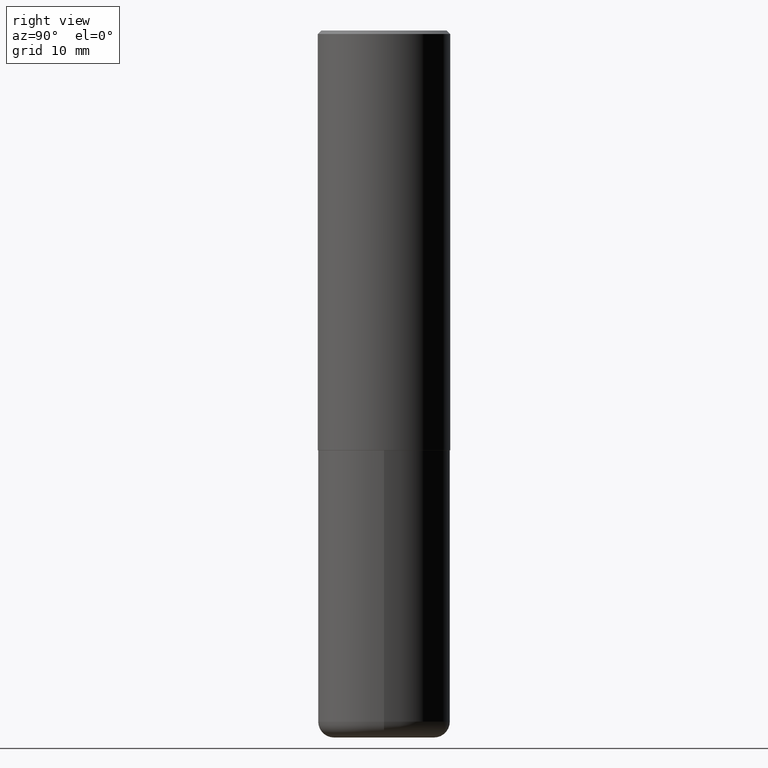
[diagram: clean part render]
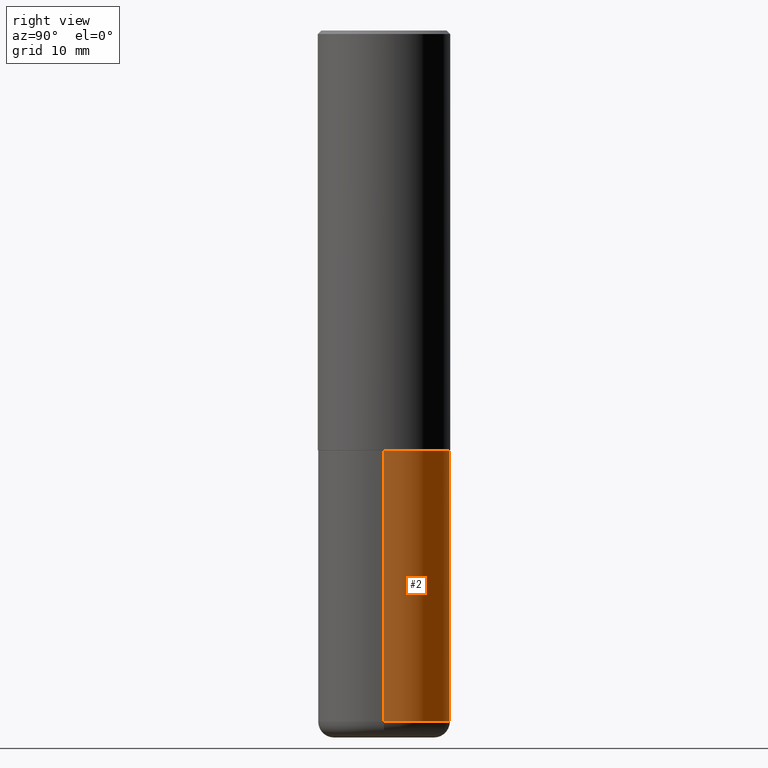
[diagram: same view with one face highlighted and labeled with its STEP entity id]
A machine part, right view. The second image highlights one B-rep face of the part: STEP entity #2.
In plain terms, the highlighted cylindrical surface (partial cylindrical patch) has radius 9.525 mm, axis along (-0, 0, 1).
Its self-contained STEP definition (entity closure, byte-faithful):
#2 = ADVANCED_FACE ( 'NONE', ( #352 ), #25, .T. ) ;
#12 = CARTESIAN_POINT ( 'NONE',  ( -0.3749999999999999445, -1.098715677577632652E-14, -3.910000000000000142 ) ) ;
#22 = EDGE_CURVE ( 'NONE', #377, #224, #260, .T. ) ;
#25 = CYLINDRICAL_SURFACE ( 'NONE', #79, 0.3749999999999999445 ) ;
#63 = ORIENTED_EDGE ( 'NONE', *, *, #76, .T. ) ;
#64 = DIRECTION ( 'NONE',  ( 1.000000000000000000, -6.982962677686266711E-15, 4.876176775795935793E-29 ) ) ;
#76 = EDGE_CURVE ( 'NONE', #346, #224, #360, .T. ) ;
#79 = AXIS2_PLACEMENT_3D ( 'NONE', #154, #281, #64 ) ;
#91 = DIRECTION ( 'NONE',  ( 1.000000000000000000, -6.982962677686266711E-15, 0.000000000000000000 ) ) ;
#94 = AXIS2_PLACEMENT_3D ( 'NONE', #123, #247, #91 ) ;
#115 = CARTESIAN_POINT ( 'NONE',  ( 0.3750000000000000555, -1.091087918388482013E-14, -2.375000000000000000 ) ) ;
#123 = CARTESIAN_POINT ( 'NONE',  ( 5.807988414689699417E-29, -8.292268179752470118E-15, -2.375000000000000000 ) ) ;
#127 = VERTEX_POINT ( 'NONE', #299 ) ;
#130 = ORIENTED_EDGE ( 'NONE', *, *, #22, .F. ) ;
#135 = CARTESIAN_POINT ( 'NONE',  ( 0.3749999999999999445, -2.618611004132349622E-15, 1.828566290923475642E-29 ) ) ;
#149 = CARTESIAN_POINT ( 'NONE',  ( 9.561783032183883600E-29, -1.365169203487670064E-14, -3.910000000000000142 ) ) ;
#154 = CARTESIAN_POINT ( 'NONE',  ( 0.000000000000000000, 0.000000000000000000, 0.000000000000000000 ) ) ;
#203 = DIRECTION ( 'NONE',  ( -2.445468806185136597E-29, 3.491481338843145583E-15, 1.000000000000000000 ) ) ;
#213 = EDGE_CURVE ( 'NONE', #127, #377, #298, .T. ) ;
#223 = EDGE_LOOP ( 'NONE', ( #240, #63, #130, #388 ) ) ;
#224 = VERTEX_POINT ( 'NONE', #395 ) ;
#240 = ORIENTED_EDGE ( 'NONE', *, *, #294, .T. ) ;
#247 = DIRECTION ( 'NONE',  ( -2.445468806185136597E-29, 3.491481338843145583E-15, 1.000000000000000000 ) ) ;
#258 = CIRCLE ( 'NONE', #292, 0.3749999999999999445 ) ;
#260 = CIRCLE ( 'NONE', #94, 0.3750000000000000555 ) ;
#261 = DIRECTION ( 'NONE',  ( -2.445468806185136877E-29, 3.491481338843145188E-15, 1.000000000000000000 ) ) ;
#280 = DIRECTION ( 'NONE',  ( 1.000000000000000000, -6.982962677686263555E-15, 0.000000000000000000 ) ) ;
#281 = DIRECTION ( 'NONE',  ( -2.445468806185136597E-29, 3.491481338843145583E-15, 1.000000000000000000 ) ) ;
#292 = AXIS2_PLACEMENT_3D ( 'NONE', #149, #203, #280 ) ;
#294 = EDGE_CURVE ( 'NONE', #127, #346, #258, .T. ) ;
#298 = LINE ( 'NONE', #135, #386 ) ;
#299 = CARTESIAN_POINT ( 'NONE',  ( 0.3749999999999999445, -1.627030303900904751E-14, -3.910000000000000142 ) ) ;
#318 = VECTOR ( 'NONE', #367, 39.37007874015748143 ) ;
#329 = CARTESIAN_POINT ( 'NONE',  ( -0.3749999999999999445, 2.664535259100375303E-15, -1.844600658845589318E-29 ) ) ;
#346 = VERTEX_POINT ( 'NONE', #12 ) ;
#352 = FACE_OUTER_BOUND ( 'NONE', #223, .T. ) ;
#360 = LINE ( 'NONE', #329, #318 ) ;
#367 = DIRECTION ( 'NONE',  ( -2.445468806185136877E-29, 3.491481338843145188E-15, 1.000000000000000000 ) ) ;
#377 = VERTEX_POINT ( 'NONE', #115 ) ;
#386 = VECTOR ( 'NONE', #261, 39.37007874015748143 ) ;
#388 = ORIENTED_EDGE ( 'NONE', *, *, #213, .F. ) ;
#395 = CARTESIAN_POINT ( 'NONE',  ( -0.3750000000000000555, -8.307444848214210473E-15, -2.375000000000000000 ) ) ;